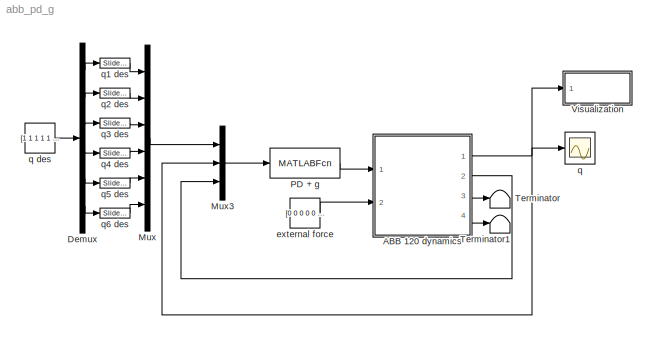
MODEL abb_pd_g
KIND model
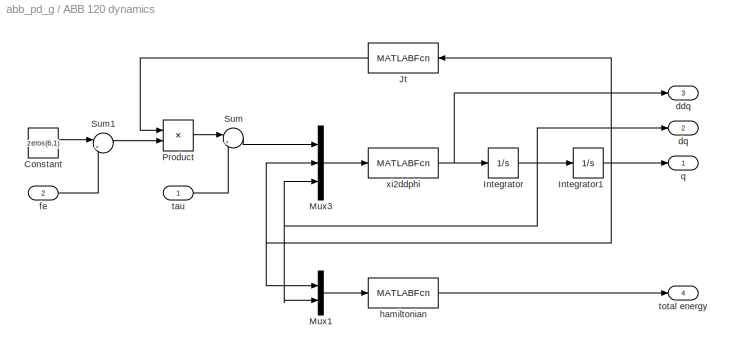
BLOCK [SubSystem] ABB 120 dynamics
  Ports = [2, 4]
  RequestExecContextInheritance = off
  SID = 139
  Variant = off
BLOCK [Constant] ABB 120 dynamics/Constant
  SID = 142
  Value = zeros(6,1)
BLOCK [Integrator] ABB 120 dynamics/Integrator
  InitialCondition = dphi0
  Ports = [1, 1]
  SID = 143
BLOCK [Integrator] ABB 120 dynamics/Integrator1
  InitialCondition = phi0
  Ports = [1, 1]
  SID = 144
BLOCK [MATLABFcn] ABB 120 dynamics/Jt
  MATLABFcn = I_Je_fun_solution(u(1:6))'
  Output1D = off
  OutputDimensions = [6,6]
  OutputSignalType = real
  Ports = [1, 1]
  SID = 145
BLOCK [Mux] ABB 120 dynamics/Mux1
  DisplayOption = bar
  Inputs = 2
  Ports = [2, 1]
  SID = 146
BLOCK [Mux] ABB 120 dynamics/Mux3
  DisplayOption = bar
  Inputs = 3
  Ports = [3, 1]
  SID = 147
BLOCK [Product] ABB 120 dynamics/Product
  InputSameDT = off
  Multiplication = Matrix(*)
  OutDataTypeStr = Inherit: Inherit via internal rule
  Ports = [2, 1]
  RndMeth = Floor
  SID = 148
  SaturateOnIntegerOverflow = off
BLOCK [Sum] ABB 120 dynamics/Sum
  IconShape = round
  InputSameDT = off
  Inputs = |++
  OutDataTypeStr = Inherit: Inherit via internal rule
  Ports = [2, 1]
  SID = 149
  SaturateOnIntegerOverflow = off
BLOCK [Sum] ABB 120 dynamics/Sum1
  IconShape = round
  InputSameDT = off
  Inputs = |++
  OutDataTypeStr = Inherit: Inherit via internal rule
  Ports = [2, 1]
  SID = 150
  SaturateOnIntegerOverflow = off
BLOCK [Outport] ABB 120 dynamics/ddq
  IconDisplay = Port number
  Port = 3
  SID = 155
BLOCK [Outport] ABB 120 dynamics/dq
  IconDisplay = Port number
  Port = 2
  SID = 154
BLOCK [Inport] ABB 120 dynamics/fe
  IconDisplay = Port number
  Port = 2
  SID = 141
BLOCK [MATLABFcn] ABB 120 dynamics/hamiltonian
  MATLABFcn = hamiltonian_fun_solution(u(1:6), u(7:12))
  Output1D = off
  OutputDimensions = [1,1]
  Ports = [1, 1]
  SID = 151
BLOCK [Outport] ABB 120 dynamics/q
  IconDisplay = Port number
  SID = 153
BLOCK [Inport] ABB 120 dynamics/tau
  IconDisplay = Port number
  SID = 140
BLOCK [Outport] ABB 120 dynamics/total energy
  IconDisplay = Port number
  Port = 4
  SID = 156
BLOCK [MATLABFcn] ABB 120 dynamics/xi2ddphi
  MATLABFcn = abb_eom_solution(u(1:6), u(7:12), u(13:18),F,enable_g,enable_f)
  Output1D = off
  OutputDimensions = [6,1]
  Ports = [1, 1]
  SID = 152
BLOCK [Demux] Demux
  DisplayOption = bar
  Outputs = 6
  Ports = [1, 6]
  SID = 170
BLOCK [Mux] Mux
  DisplayOption = bar
  Inputs = 6
  Ports = [6, 1]
  SID = 171
BLOCK [Mux] Mux3
  DisplayOption = bar
  Inputs = 3
  Ports = [3, 1]
  SID = 135
BLOCK [MATLABFcn] PD + g
  MATLABFcn = control_pd_g(u(1:6), u(7:12), u(13:18))
  Output1D = off
  OutputDimensions = [6,1]
  Ports = [1, 1]
  SID = 134
BLOCK [Terminator] Terminator
  SID = 158
BLOCK [Terminator] Terminator1
  SID = 159
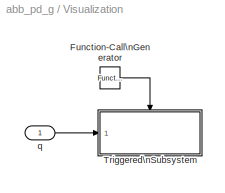
BLOCK [SubSystem] Visualization
  Ports = [1]
  RequestExecContextInheritance = off
  SID = 172
  Variant = off
BLOCK [Reference] Visualization/Function-Call\nGenerator  REF=simulink/Ports &\nSubsystems/Function-Call\nGenerator
  Ports = [0, 1]
  SID = 174
  SourceBlock = simulink/Ports &\nSubsystems/Function-Call\nGenerator
  SourceType = Function-Call Generator
  numberOfIterations = 1
  sample_time = 0.05
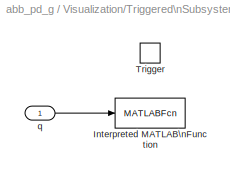
BLOCK [SubSystem] Visualization/Triggered\nSubsystem
  Ports = [1, 0, 0, 1]
  RequestExecContextInheritance = off
  SID = 175
  TreatAsAtomicUnit = on
  Variant = off
BLOCK [MATLABFcn] Visualization/Triggered\nSubsystem/Interpreted MATLAB\nFunction
  MATLABFcn = abbRobot.setJointPositions(u)
  OutputDimensions = 0
  Ports = [1]
  SID = 178
BLOCK [TriggerPort] Visualization/Triggered\nSubsystem/Trigger
  Ports = []
  SID = 177
  StatesWhenEnabling = held
  TriggerType = function-call
  VariantControl = Variant
BLOCK [Inport] Visualization/Triggered\nSubsystem/q
  IconDisplay = Port number
  SID = 176
BLOCK [Inport] Visualization/q
  IconDisplay = Port number
  SID = 173
BLOCK [Constant] external force
  SID = 123
  Value = [0 0 0 0 0 0]'
BLOCK [Scope] q
  NumInputPorts = 1
  Ports = [1]
  SID = 14
  ScopeSpecificationString = Simulink.scopes.TimeScopeBlockCfg('CurrentConfiguration', extmgr.ConfigurationSet(extmgr.Configuration('Core','General UI',true,'FigureColor',[0.156862745098039 0.156862745098039 0.156862745098039]),extmgr.Configuration('Core','Source UI',true),extmgr.Configuration('Sources','WiredSimulink',true,'DataLoggingSaveFormat','StructureWithTime','DataLoggingDecimation','1','DataLoggingDecimateData',true)...<+2823ch>
BLOCK [Constant] q des
  SID = 169
  Value = [1 1 1 1 1 1]'
BLOCK [Reference] q1 des  REF=simulink/Math\nOperations/Slider\nGain
  Ports = [1, 1]
  SID = 168
  SourceBlock = simulink/Math\nOperations/Slider\nGain
  SourceType = Slider Gain
  gain = 0
  high = 2
  low = -2
BLOCK [Reference] q2 des  REF=simulink/Math\nOperations/Slider\nGain
  Ports = [1, 1]
  SID = 166
  SourceBlock = simulink/Math\nOperations/Slider\nGain
  SourceType = Slider Gain
  gain = 0
  high = 2
  low = -2
BLOCK [Reference] q3 des  REF=simulink/Math\nOperations/Slider\nGain
  Ports = [1, 1]
  SID = 167
  SourceBlock = simulink/Math\nOperations/Slider\nGain
  SourceType = Slider Gain
  gain = 0
  high = 2
  low = -2
BLOCK [Reference] q4 des  REF=simulink/Math\nOperations/Slider\nGain
  Ports = [1, 1]
  SID = 164
  SourceBlock = simulink/Math\nOperations/Slider\nGain
  SourceType = Slider Gain
  gain = 0
  high = 2
  low = -2
BLOCK [Reference] q5 des  REF=simulink/Math\nOperations/Slider\nGain
  Ports = [1, 1]
  SID = 163
  SourceBlock = simulink/Math\nOperations/Slider\nGain
  SourceType = Slider Gain
  gain = 0
  high = 2
  low = -2
BLOCK [Reference] q6 des  REF=simulink/Math\nOperations/Slider\nGain
  Ports = [1, 1]
  SID = 162
  SourceBlock = simulink/Math\nOperations/Slider\nGain
  SourceType = Slider Gain
  gain = 0
  high = 2
  low = -2
LINE ABB 120 dynamics/Constant:1 -> ABB 120 dynamics/Sum1:1
NET ABB 120 dynamics/Integrator1:1 -> ABB 120 dynamics/Jt:1, ABB 120 dynamics/Mux1:1, ABB 120 dynamics/Mux3:2, ABB 120 dynamics/q:1
NET ABB 120 dynamics/Integrator:1 -> ABB 120 dynamics/Integrator1:1, ABB 120 dynamics/Mux1:2, ABB 120 dynamics/Mux3:3, ABB 120 dynamics/dq:1
LINE ABB 120 dynamics/Jt:1 -> ABB 120 dynamics/Product:1
LINE ABB 120 dynamics/Mux1:1 -> ABB 120 dynamics/hamiltonian:1
LINE ABB 120 dynamics/Mux3:1 -> ABB 120 dynamics/xi2ddphi:1
LINE ABB 120 dynamics/Product:1 -> ABB 120 dynamics/Sum:1
LINE ABB 120 dynamics/Sum1:1 -> ABB 120 dynamics/Product:2
LINE ABB 120 dynamics/Sum:1 -> ABB 120 dynamics/Mux3:1
LINE ABB 120 dynamics/fe:1 -> ABB 120 dynamics/Sum1:2
LINE ABB 120 dynamics/hamiltonian:1 -> ABB 120 dynamics/total energy:1
LINE ABB 120 dynamics/tau:1 -> ABB 120 dynamics/Sum:2
NET ABB 120 dynamics/xi2ddphi:1 -> ABB 120 dynamics/Integrator:1, ABB 120 dynamics/ddq:1
NET ABB 120 dynamics:1 -> Mux3:2, Visualization:1, q:1
LINE ABB 120 dynamics:2 -> Mux3:3
LINE ABB 120 dynamics:3 -> Terminator:1
LINE ABB 120 dynamics:4 -> Terminator1:1
LINE Demux:1 -> q1 des:1
LINE Demux:2 -> q2 des:1
LINE Demux:3 -> q3 des:1
LINE Demux:4 -> q4 des:1
LINE Demux:5 -> q5 des:1
LINE Demux:6 -> q6 des:1
LINE Mux3:1 -> PD + g:1
LINE Mux:1 -> Mux3:1
LINE PD + g:1 -> ABB 120 dynamics:1
LINE Visualization/Function-Call\nGenerator:1 -> Visualization/Triggered\nSubsystem:trigger
LINE Visualization/Triggered\nSubsystem/q:1 -> Visualization/Triggered\nSubsystem/Interpreted MATLAB\nFunction:1
LINE Visualization/q:1 -> Visualization/Triggered\nSubsystem:1
LINE external force:1 -> ABB 120 dynamics:2
LINE q des:1 -> Demux:1
LINE q1 des:1 -> Mux:1
LINE q2 des:1 -> Mux:2
LINE q3 des:1 -> Mux:3
LINE q4 des:1 -> Mux:4
LINE q5 des:1 -> Mux:5
LINE q6 des:1 -> Mux:6
note: NET lines group one-source signal fan-out (src -> all destinations, sorted); 1:1 wires keep LINE
